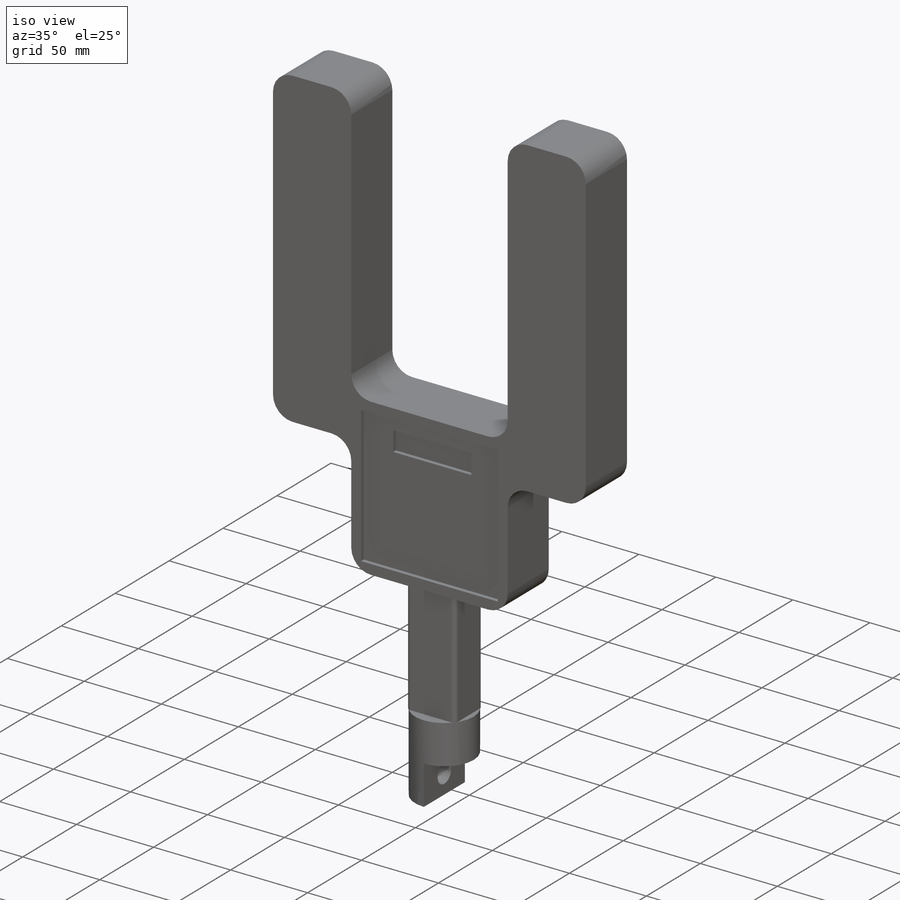
[diagram: iso view]
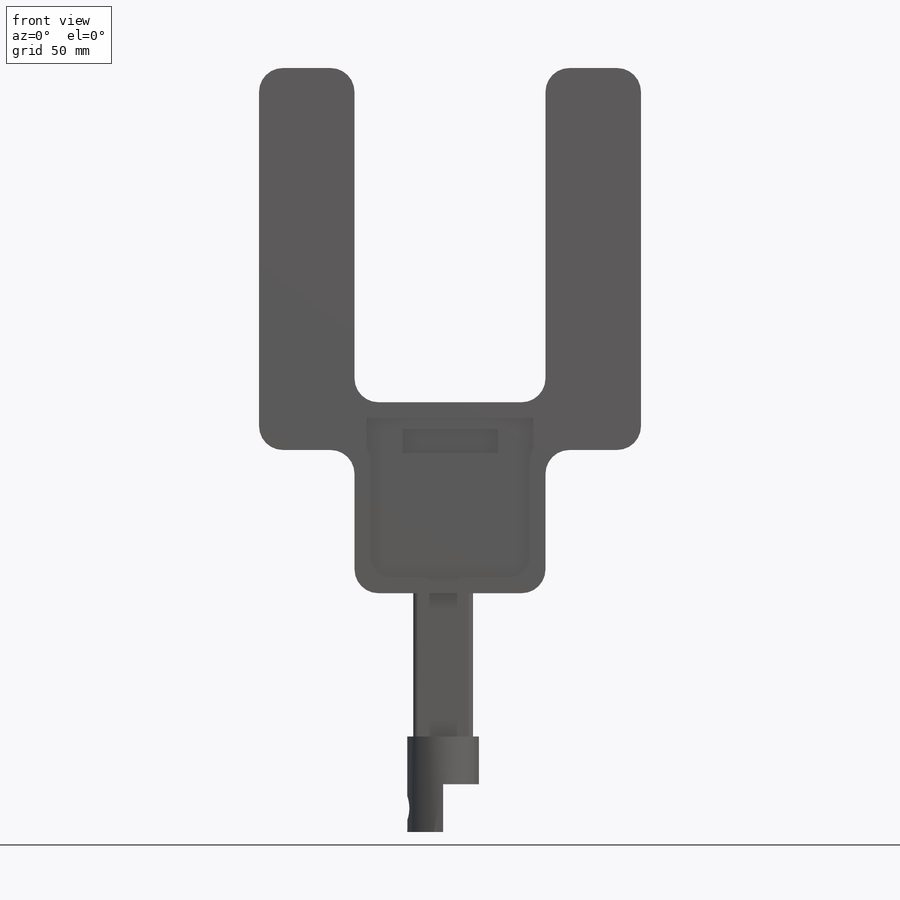
[diagram: front view]
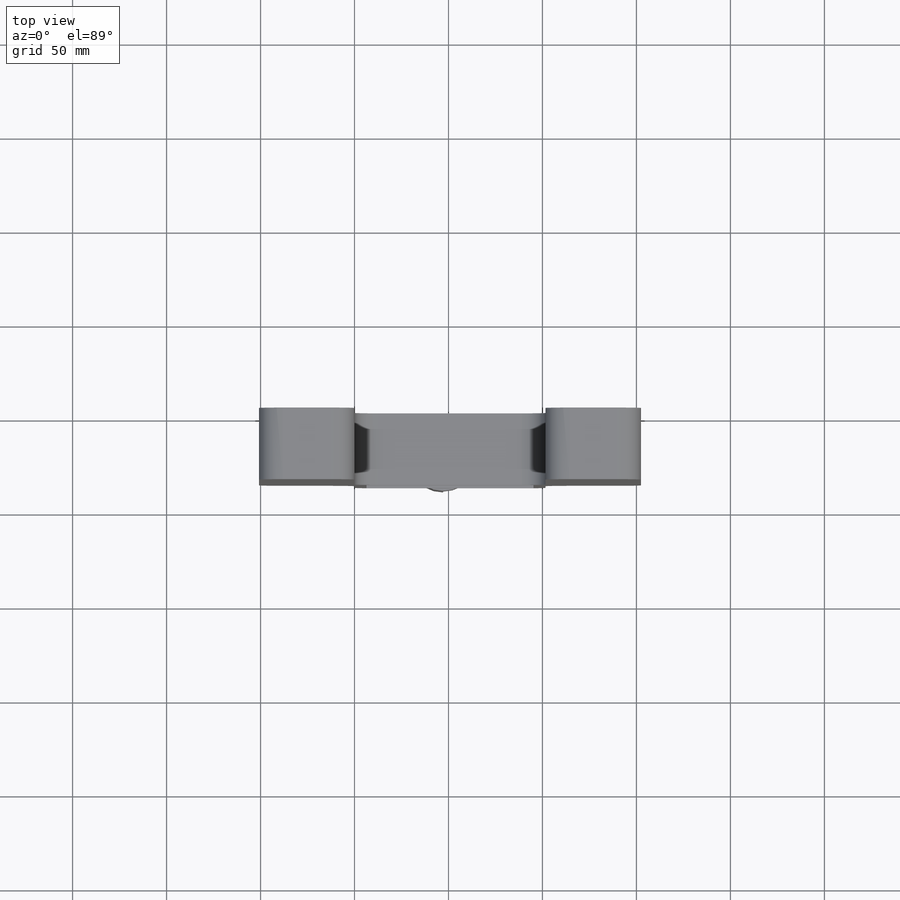
[diagram: top view]
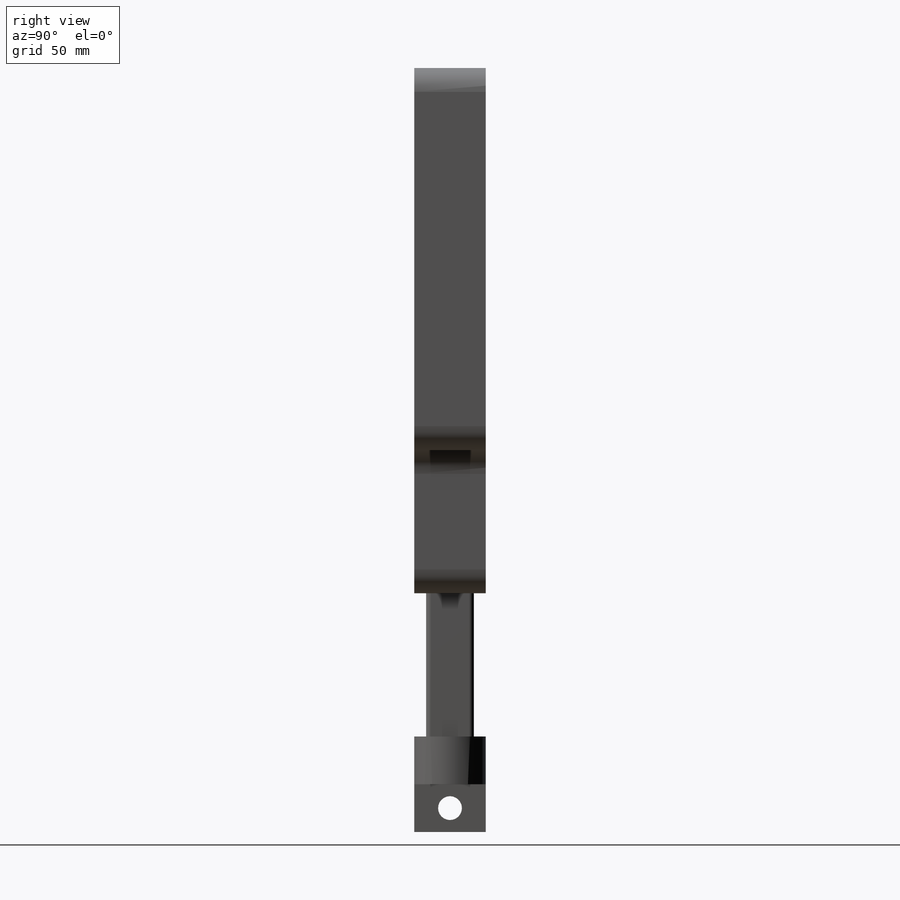
[diagram: right view]
SOLIDWORKS PART (.sldprt)
format: sldprt  version: not decoded by parser v0  size: 302,080 bytes
history: native  units: mm
features: sketch x8, extrude x4, cut_extrude x4, fillet x2, material x1 (+11 scaffold rows collapsed)
feature tree (30):
  scaffold x11  (default folders/planes/origin — collapsed)
  material  "ABS"
  sketch  "Sketch1"  dims[D1=101.6mm D2=101.6mm]
  extrude  "Boss-Extrude1"  Depth=38.1mm
  sketch  "Sketch2"  dims[D1=12.7mm D2=50.8mm D3=~27.795648mm D4=25.4mm]
  cut_extrude  "Cut-Extrude1"  Depth=5.08mm
  sketch  "Sketch3"  dims[D1=6.35mm D2=6.35mm D3=6.35mm D4=6.35mm]
  cut_extrude  "Cut-Extrude2"  Depth=2.54mm
  sketch  "Sketch4"  dims[D1=31.75mm D2=25.4mm D3=12.7mm D4=19.05mm]
  extrude  "Boss-Extrude2"  Depth=76.2mm
  sketch  "Sketch6"  dims[D1=38.1mm]
  extrude  "Boss-Extrude3"  Depth=50.8mm
  sketch  "Sketch7"
  cut_extrude  "Cut-Extrude3"  Depth=25.4mm
  sketch  "Sketch8"  dims[D1=203.2mm D2=50.8mm D3=25.4mm D4=50.8mm D5=203.2mm]
  extrude  "Boss-Extrude4"  [1 undecoded]
  fillet  "Fillet1"  Radius=12.7mm
  sketch  "Sketch9"  dims[D1=12.7mm D2=12.7mm D3=19.05mm]
  cut_extrude  "Cut-Extrude4"  [1 undecoded]
  fillet  "Fillet2"  Radius=2.54mm
decode coverage: 15 of 18 modeling features carry decoded parameters
note: ~ marks probable driven/reference dimensions
note: 2 parameter values undecoded
note: suppression state not decoded; provenance and decode notes live in map.json
